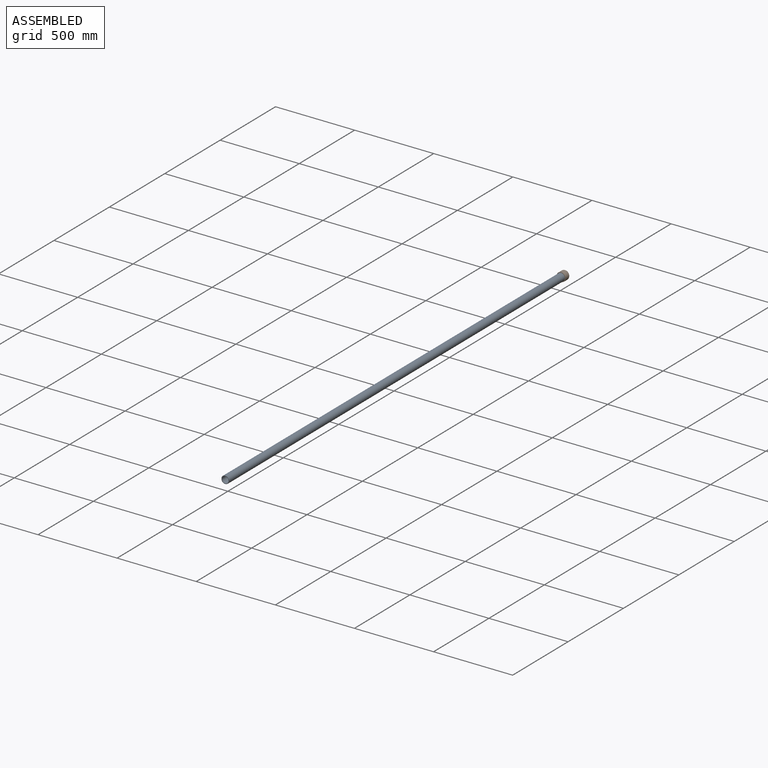
[diagram: assembled view]
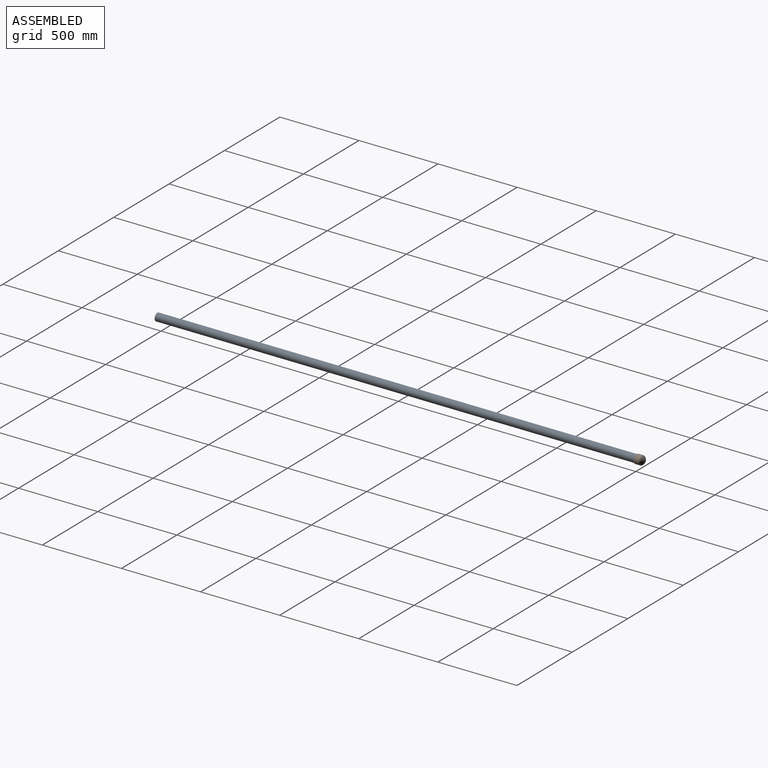
[diagram: assembled view, second angle]
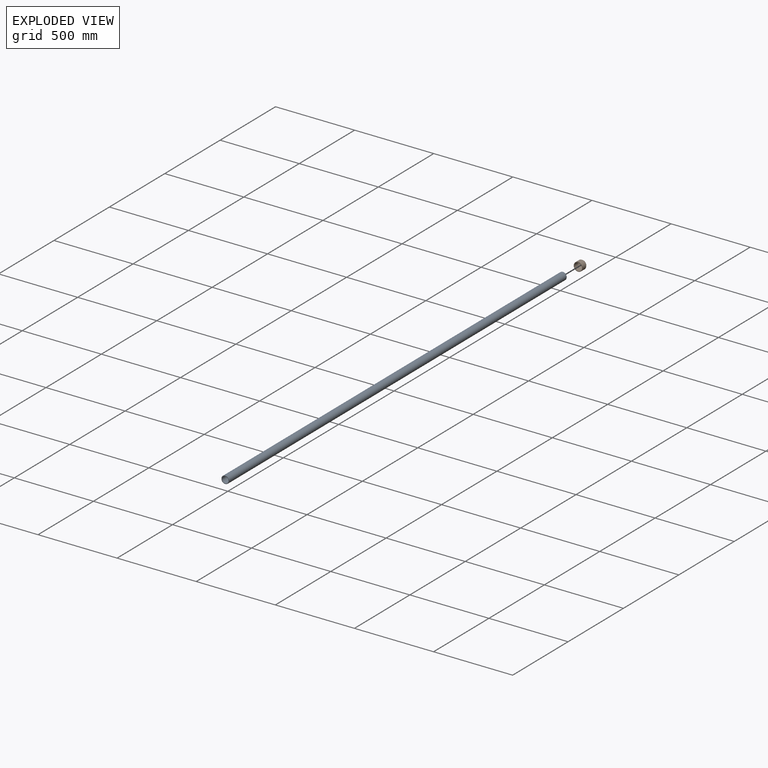
[diagram: exploded view]
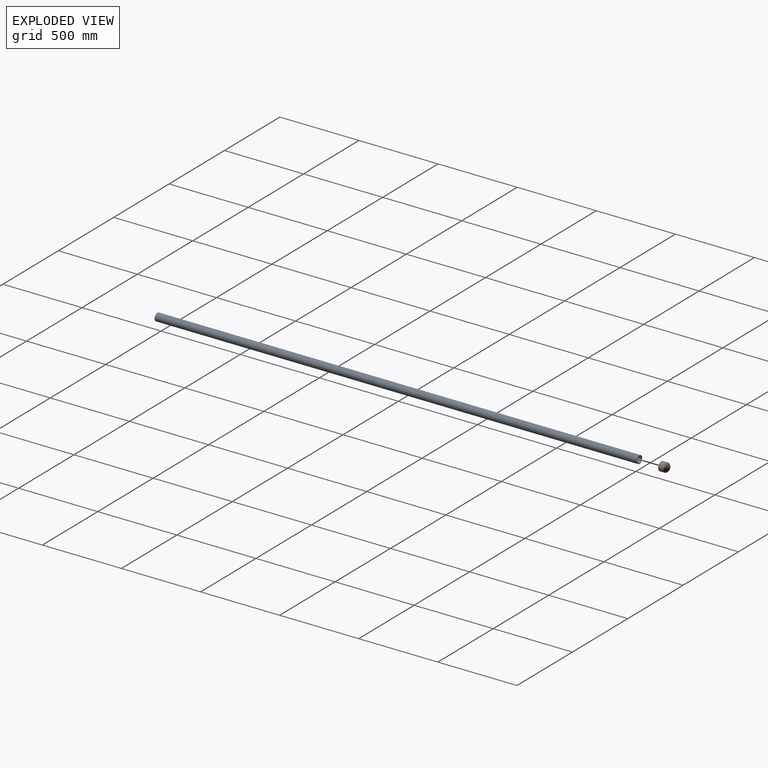
[diagram: exploded view, second angle]
ASSEMBLY  parts=2 mates=2
PART A: 4 faces, bbox 48.3x3048x48.3 mm
  f0: cylinder r=24.13mm len=3048mm, axis (0,1,0), area 462117.2mm2, adj f1,f2
  f1: plane 48.26x48.26mm, normal (0,-1,0), area 515.8mm2, adj f0,f3
  f2: plane 48.26x48.26mm, normal (0,1,0), area 515.8mm2, adj f0,f3
  f3: cylinder r=20.45mm len=3048mm, axis (0,1,0), area 391583.5mm2, adj f1,f2
PART B: 5 faces, bbox 55.9x50.8x55.9 mm
  f0: cylinder r=27.94mm len=55.88mm, axis (0,1,0), area 5852.5mm2, adj f1,f2
  f1: plane 55.88x55.88mm, normal (0,-1,0), area 603.9mm2, adj f0,f3
  f2: sphere r=31.08mm, area 3410.5mm2, adj f0
  f3: cylinder r=24.26mm len=48.51mm, axis (0,1,0), area 4947.2mm2, adj f1,f4
  f4: sphere r=27.4mm, area 2523.5mm2, adj f3
PLACE A at identity fixed
PLACE B rot(axis=(0,1,0),121.5deg) t=(0,1540.67,0)mm
MATE planar A.f0 <-> B.f0  axis (0,1,0) through (0,1524,0)mm
MATE cylindrical A.f0 <-> B.f0  axis (0,1,0) through (0,0,0)mm
